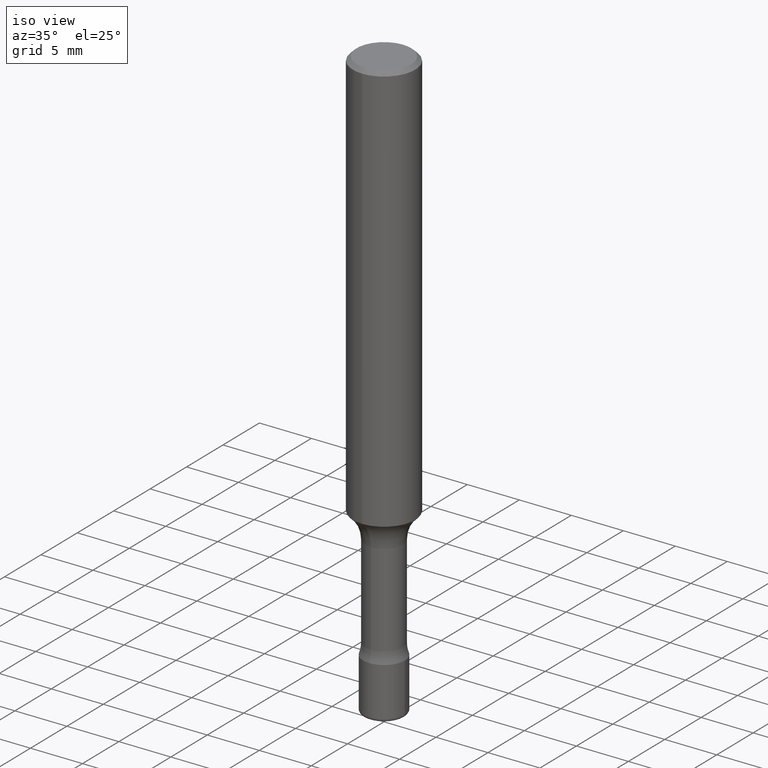
[diagram: clean part render]
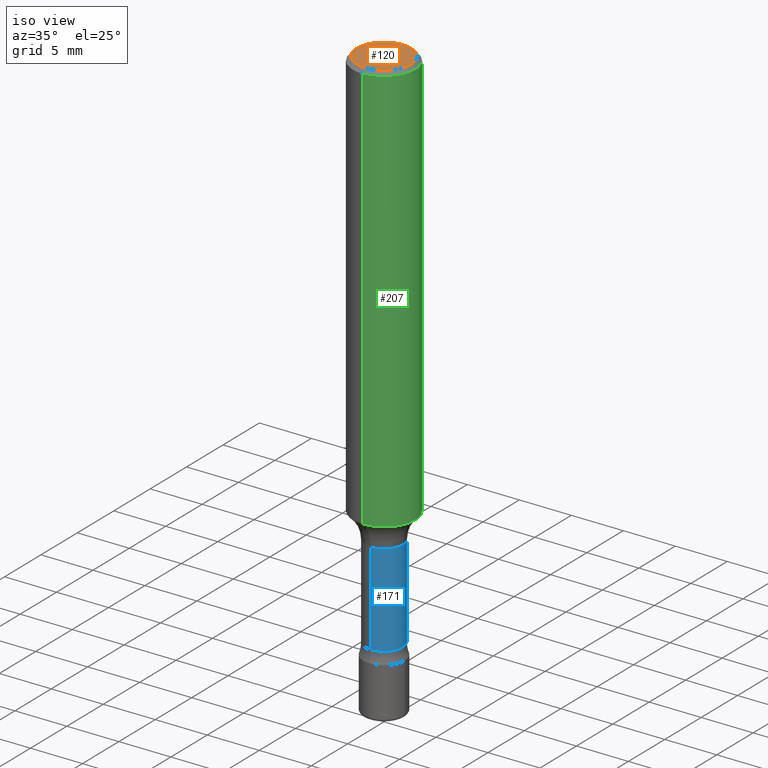
[diagram: same view with three faces highlighted in distinct colors, each labeled with its STEP entity id]
A machine part, iso view with three faces highlighted in distinct colors.
Their STEP definitions:

[orange] entity #120 — the highlighted planar face has unit normal (0, -0, -1).
#34 = DIRECTION ( 'NONE',  ( -6.982962677686265922E-15, -1.000000000000000000, 3.492312071018834927E-15 ) ) ;
#44 = AXIS2_PLACEMENT_3D ( 'NONE', #353, #188, #401 ) ;
#73 = PLANE ( 'NONE',  #44 ) ;
#105 = DIRECTION ( 'NONE',  ( -2.444888709007337080E-29, 3.492312071018835321E-15, 1.000000000000000000 ) ) ;
#113 = CARTESIAN_POINT ( 'NONE',  ( 7.401769420960591620E-45, -1.058072037980263968E-30, -3.028580680983933068E-16 ) ) ;
#120 = ADVANCED_FACE ( 'NONE', ( #440 ), #73, .F. ) ;
#157 = AXIS2_PLACEMENT_3D ( 'NONE', #113, #437, #34 ) ;
#174 = EDGE_CURVE ( 'NONE', #352, #283, #227, .T. ) ;
#188 = DIRECTION ( 'NONE',  ( 2.444888709007336799E-29, -3.492312071018835321E-15, -1.000000000000000000 ) ) ;
#227 = CIRCLE ( 'NONE', #157, 0.1031000000000000111 ) ;
#228 = ORIENTED_EDGE ( 'NONE', *, *, #358, .T. ) ;
#235 = EDGE_LOOP ( 'NONE', ( #228, #281 ) ) ;
#239 = CIRCLE ( 'NONE', #335, 0.1031000000000000111 ) ;
#262 = DIRECTION ( 'NONE',  ( -6.982962677686265922E-15, -1.000000000000000000, 3.492312071018834927E-15 ) ) ;
#281 = ORIENTED_EDGE ( 'NONE', *, *, #174, .T. ) ;
#283 = VERTEX_POINT ( 'NONE', #394 ) ;
#335 = AXIS2_PLACEMENT_3D ( 'NONE', #459, #105, #262 ) ;
#352 = VERTEX_POINT ( 'NONE', #501 ) ;
#353 = CARTESIAN_POINT ( 'NONE',  ( 7.199434520694541042E-16, 0.1031000000000000111, -2.724497091256156002E-16 ) ) ;
#358 = EDGE_CURVE ( 'NONE', #283, #352, #239, .T. ) ;
#394 = CARTESIAN_POINT ( 'NONE',  ( 7.723156721521011834E-16, 0.1031000000000000111, -6.629154426204352605E-16 ) ) ;
#401 = DIRECTION ( 'NONE',  ( 6.982962677686265922E-15, 1.000000000000000000, -3.492312071018835321E-15 ) ) ;
#437 = DIRECTION ( 'NONE',  ( -2.444888709007337080E-29, 3.492312071018835321E-15, 1.000000000000000000 ) ) ;
#440 = FACE_OUTER_BOUND ( 'NONE', #235, .T. ) ;
#459 = CARTESIAN_POINT ( 'NONE',  ( 7.401769420960591620E-45, -1.058072037980263968E-30, -3.028580680983933068E-16 ) ) ;
#501 = CARTESIAN_POINT ( 'NONE',  ( -7.587710785535310407E-16, -0.1031000000000000111, 5.719930642364859767E-17 ) ) ;

[blue] entity #171 — the highlighted cylindrical surface (edge-blend (fillet) strip) has radius 1.8034 mm, axis along (-0, 0, 1).
#2 = CARTESIAN_POINT ( 'NONE',  ( -4.957903501156845310E-16, -0.07100000000000578071, -1.653499999999999748 ) ) ;
#9 = CARTESIAN_POINT ( 'NONE',  ( 4.042623480343631628E-29, -5.774538009429644609E-15, -1.653499999999999970 ) ) ;
#10 = CARTESIAN_POINT ( 'NONE',  ( 5.044853423896712842E-16, 0.07100000000000002143, 2.301192418489086903E-16 ) ) ;
#29 = FACE_OUTER_BOUND ( 'NONE', #517, .T. ) ;
#40 = EDGE_CURVE ( 'NONE', #430, #504, #486, .T. ) ;
#59 = AXIS2_PLACEMENT_3D ( 'NONE', #9, #445, #326 ) ;
#112 = ORIENTED_EDGE ( 'NONE', *, *, #407, .T. ) ;
#140 = CARTESIAN_POINT ( 'NONE',  ( -4.957903501157250587E-16, -0.07100000000000002143, 7.260275559335834854E-16 ) ) ;
#156 = DIRECTION ( 'NONE',  ( -2.444888709007337080E-29, 3.492312071018835321E-15, 1.000000000000000000 ) ) ;
#162 = ORIENTED_EDGE ( 'NONE', *, *, #260, .T. ) ;
#171 = ADVANCED_FACE ( 'NONE', ( #29 ), #512, .T. ) ;
#186 = ORIENTED_EDGE ( 'NONE', *, *, #40, .F. ) ;
#193 = VERTEX_POINT ( 'NONE', #238 ) ;
#202 = CARTESIAN_POINT ( 'NONE',  ( -4.957903501156761493E-16, -0.07100000000000704359, -2.003870593126606980 ) ) ;
#206 = DIRECTION ( 'NONE',  ( -2.444888709007337080E-29, 3.492312071018835321E-15, 1.000000000000000000 ) ) ;
#238 = CARTESIAN_POINT ( 'NONE',  ( 6.718181566612139372E-16, 0.07099999999999423439, -1.653500000000000192 ) ) ;
#260 = EDGE_CURVE ( 'NONE', #430, #329, #403, .T. ) ;
#272 = VECTOR ( 'NONE', #293, 39.37007874015748143 ) ;
#285 = LINE ( 'NONE', #10, #272 ) ;
#293 = DIRECTION ( 'NONE',  ( -2.444888709007337080E-29, 3.492312071018835321E-15, 1.000000000000000000 ) ) ;
#326 = DIRECTION ( 'NONE',  ( -6.982962677686265922E-15, -1.000000000000000000, 3.847673230513046609E-15 ) ) ;
#329 = VERTEX_POINT ( 'NONE', #344 ) ;
#337 = CIRCLE ( 'NONE', #59, 0.07100000000000000755 ) ;
#344 = CARTESIAN_POINT ( 'NONE',  ( 5.044853423897160521E-16, 0.07099999999999305478, -2.003870593126607869 ) ) ;
#347 = DIRECTION ( 'NONE',  ( -6.982962677686266711E-15, -1.000000000000000000, 3.847673230513045031E-15 ) ) ;
#348 = VECTOR ( 'NONE', #206, 39.37007874015748143 ) ;
#403 = CIRCLE ( 'NONE', #471, 0.07100000000000003531 ) ;
#407 = EDGE_CURVE ( 'NONE', #329, #193, #285, .T. ) ;
#430 = VERTEX_POINT ( 'NONE', #202 ) ;
#433 = CARTESIAN_POINT ( 'NONE',  ( 4.899240587447077474E-29, -6.998141461135724120E-15, -2.003870593126607424 ) ) ;
#436 = ORIENTED_EDGE ( 'NONE', *, *, #508, .F. ) ;
#445 = DIRECTION ( 'NONE',  ( -2.444888709007337080E-29, 3.492312071018835321E-15, 1.000000000000000000 ) ) ;
#452 = AXIS2_PLACEMENT_3D ( 'NONE', #473, #156, #470 ) ;
#454 = DIRECTION ( 'NONE',  ( -2.444888709007337080E-29, 3.492312071018835321E-15, 1.000000000000000000 ) ) ;
#470 = DIRECTION ( 'NONE',  ( -6.982962677686266711E-15, -1.000000000000000000, 3.492312071018835716E-15 ) ) ;
#471 = AXIS2_PLACEMENT_3D ( 'NONE', #433, #454, #347 ) ;
#473 = CARTESIAN_POINT ( 'NONE',  ( -1.169113584055446105E-44, 1.669184350826100908E-30, 4.780733988912460139E-16 ) ) ;
#486 = LINE ( 'NONE', #140, #348 ) ;
#504 = VERTEX_POINT ( 'NONE', #2 ) ;
#508 = EDGE_CURVE ( 'NONE', #504, #193, #337, .T. ) ;
#512 = CYLINDRICAL_SURFACE ( 'NONE', #452, 0.07100000000000002143 ) ;
#517 = EDGE_LOOP ( 'NONE', ( #162, #112, #436, #186 ) ) ;

[green] entity #207 — the highlighted cylindrical surface (partial cylindrical patch) has radius 2.9997 mm, axis along (-0, 0, 1).
#20 = CARTESIAN_POINT ( 'NONE',  ( -1.169113584055446105E-44, 1.669184350826100908E-30, 4.780733988912460139E-16 ) ) ;
#27 = CARTESIAN_POINT ( 'NONE',  ( 3.803616507154480473E-29, -5.433137219098765341E-15, -1.555742187013006372 ) ) ;
#83 = LINE ( 'NONE', #408, #379 ) ;
#92 = DIRECTION ( 'NONE',  ( -2.444888709007337080E-29, 3.492312071018835321E-15, 1.000000000000000000 ) ) ;
#96 = VECTOR ( 'NONE', #92, 39.37007874015748143 ) ;
#118 = VERTEX_POINT ( 'NONE', #275 ) ;
#136 = AXIS2_PLACEMENT_3D ( 'NONE', #20, #143, #185 ) ;
#139 = DIRECTION ( 'NONE',  ( -2.444888709007337080E-29, 3.492312071018835321E-15, 1.000000000000000000 ) ) ;
#143 = DIRECTION ( 'NONE',  ( -2.444888709007337080E-29, 3.492312071018835321E-15, 1.000000000000000000 ) ) ;
#160 = VERTEX_POINT ( 'NONE', #321 ) ;
#179 = EDGE_LOOP ( 'NONE', ( #184, #497, #397, #244 ) ) ;
#184 = ORIENTED_EDGE ( 'NONE', *, *, #286, .T. ) ;
#185 = DIRECTION ( 'NONE',  ( -6.982962677686265922E-15, -1.000000000000000000, 3.492312071018835716E-15 ) ) ;
#207 = ADVANCED_FACE ( 'NONE', ( #518 ), #229, .T. ) ;
#210 = CARTESIAN_POINT ( 'NONE',  ( -8.246878922347479668E-16, -0.1180999999999999966, 8.905154544785705862E-16 ) ) ;
#225 = CARTESIAN_POINT ( 'NONE',  ( 8.246878922347483612E-16, 0.1180999999999999411, -0.01500000000000071589 ) ) ;
#229 = CYLINDRICAL_SURFACE ( 'NONE', #136, 0.1180999999999999966 ) ;
#244 = ORIENTED_EDGE ( 'NONE', *, *, #424, .F. ) ;
#246 = CARTESIAN_POINT ( 'NONE',  ( -8.102248135368174406E-16, -0.1181000000000000522, -0.01499999999999989189 ) ) ;
#249 = CARTESIAN_POINT ( 'NONE',  ( 3.667333063511079398E-31, -5.238468106528358615E-17, -0.01500000000000030302 ) ) ;
#263 = AXIS2_PLACEMENT_3D ( 'NONE', #27, #139, #465 ) ;
#275 = CARTESIAN_POINT ( 'NONE',  ( -8.246878922347099042E-16, -0.1181000000000054229, -1.555742187013005928 ) ) ;
#286 = EDGE_CURVE ( 'NONE', #118, #160, #489, .T. ) ;
#289 = LINE ( 'NONE', #210, #96 ) ;
#321 = CARTESIAN_POINT ( 'NONE',  ( 8.391509709327163582E-16, 0.1180999999999945704, -1.555742187013007038 ) ) ;
#322 = AXIS2_PLACEMENT_3D ( 'NONE', #249, #450, #444 ) ;
#360 = VERTEX_POINT ( 'NONE', #225 ) ;
#379 = VECTOR ( 'NONE', #416, 39.37007874015748143 ) ;
#393 = CIRCLE ( 'NONE', #322, 0.1180999999999999966 ) ;
#397 = ORIENTED_EDGE ( 'NONE', *, *, #422, .F. ) ;
#408 = CARTESIAN_POINT ( 'NONE',  ( 8.391509709326781971E-16, 0.1180999999999999966, 6.563134330392160184E-17 ) ) ;
#416 = DIRECTION ( 'NONE',  ( -2.444888709007337080E-29, 3.492312071018835321E-15, 1.000000000000000000 ) ) ;
#422 = EDGE_CURVE ( 'NONE', #469, #360, #393, .T. ) ;
#424 = EDGE_CURVE ( 'NONE', #118, #469, #289, .T. ) ;
#444 = DIRECTION ( 'NONE',  ( -6.982962677686265922E-15, -1.000000000000000000, 3.487819265831411744E-15 ) ) ;
#450 = DIRECTION ( 'NONE',  ( -2.444888709007337080E-29, 3.492312071018835321E-15, 1.000000000000000000 ) ) ;
#465 = DIRECTION ( 'NONE',  ( -6.982962677686265922E-15, -1.000000000000000000, 4.626330217890369336E-15 ) ) ;
#469 = VERTEX_POINT ( 'NONE', #246 ) ;
#489 = CIRCLE ( 'NONE', #263, 0.1180999999999999966 ) ;
#497 = ORIENTED_EDGE ( 'NONE', *, *, #510, .T. ) ;
#510 = EDGE_CURVE ( 'NONE', #160, #360, #83, .T. ) ;
#518 = FACE_OUTER_BOUND ( 'NONE', #179, .T. ) ;